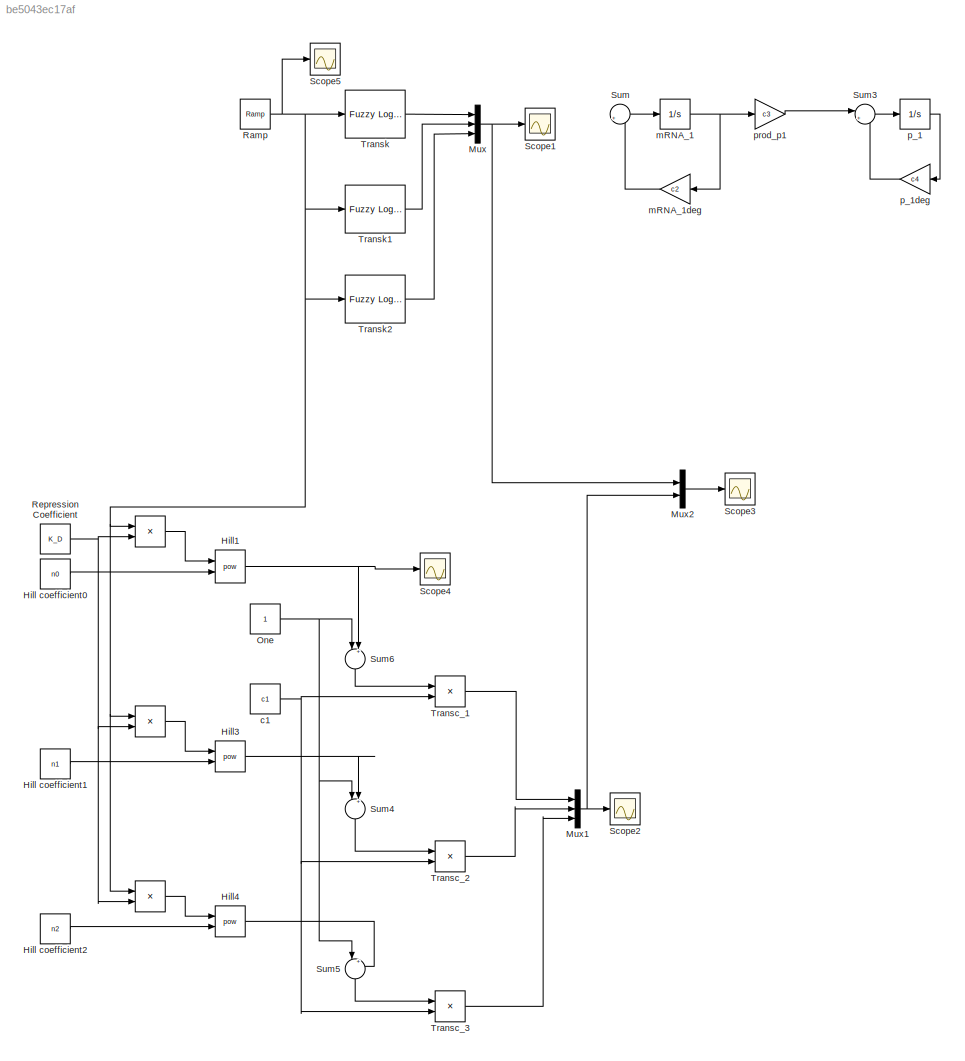
MODEL slx_be5043ec17af
KIND model
CONFIG AbsTol = auto
CONFIG FixedStep = 0.1
CONFIG MaxStep = auto
CONFIG MinStep = auto
CONFIG RelTol = 1e-3
CONFIG SampleTimeConstraint = Unconstrained
CONFIG Solver = ode4
CONFIG SolverMode = Auto
CONFIG SolverName = ode4
CONFIG StartTime = 0.0
CONFIG StopTime = 100
BLOCK [Product]  
  InputSameDT = off
  Inputs = */
  OutDataTypeStr = Inherit: Inherit via internal rule
  Ports = [2, 1]
  RndMeth = Floor
  SaturateOnIntegerOverflow = off
BLOCK [Constant] Hill coefficient0
  Value = n0
BLOCK [Constant] Hill coefficient1
  Value = n1
BLOCK [Constant] Hill coefficient2
  Value = n2
BLOCK [Math] Hill1
  Operator = pow
  Ports = [2, 1]
BLOCK [Math] Hill3
  Operator = pow
  Ports = [2, 1]
BLOCK [Math] Hill4
  Operator = pow
  Ports = [2, 1]
BLOCK [Mux] Mux
  DisplayOption = bar
  Inputs = 3
  Ports = [3, 1]
BLOCK [Mux] Mux1
  DisplayOption = bar
  Inputs = 3
  Ports = [3, 1]
BLOCK [Mux] Mux2
  DisplayOption = bar
  Inputs = 2
  Ports = [2, 1]
BLOCK [Constant] One
BLOCK [Reference] Ramp  REF=simulink/Sources/Ramp
  Ports = [0, 1]
  SourceBlock = simulink/Sources/Ramp
  SourceType = Ramp
  VectorParams1D = on
  X0 = 0
  slope = 4
  start = 0
BLOCK [Constant] Repression Coefficient
  Value = K_D
BLOCK [Scope] Scope1
  Floating = off
  LimitDataPoints = off
  NumInputPorts = 1
  Ports = [1]
  SampleTime = 0
  SaveName = mRNA_FL
  SaveToWorkspace = on
  TimeRange = 100
  YMax = 1.5
  YMin = 0
BLOCK [Scope] Scope2
  Floating = off
  LimitDataPoints = off
  NumInputPorts = 1
  Ports = [1]
  SampleTime = 0
  SaveName = mRNA_ODE
  SaveToWorkspace = on
  TimeRange = 100
  YMax = 1.5
  YMin = 0
  ZoomMode = xonly
BLOCK [Scope] Scope3
  Floating = off
  LimitDataPoints = off
  NumInputPorts = 1
  Ports = [1]
  SampleTime = 0
  SaveName = mRNAChange2
  TimeRange = 100
  YMax = 1.5
  YMin = 0
  ZoomMode = xonly
BLOCK [Scope] Scope4
  Floating = off
  LimitDataPoints = off
  NumInputPorts = 1
  Ports = [1]
  SampleTime = 0
  SaveName = mRNAChange3
  SaveToWorkspace = on
  TimeRange = 100
  YMax = 1.5
  YMin = 0
  ZoomMode = xonly
BLOCK [Scope] Scope5
  Floating = off
  LimitDataPoints = off
  NumInputPorts = 1
  Ports = [1]
  SampleTime = 0
  SaveName = mRNAChange4
  SaveToWorkspace = on
  TimeRange = 100
  YMax = 1.5
  YMin = 0
  ZoomMode = xonly
BLOCK [Sum] Sum
  Commented = on
  IconShape = round
  InputSameDT = off
  Inputs = |+-
  OutDataTypeStr = Inherit: Inherit via internal rule
  Ports = [2, 1]
  SaturateOnIntegerOverflow = off
BLOCK [Sum] Sum3
  Commented = on
  IconShape = round
  InputSameDT = off
  Inputs = |+-
  OutDataTypeStr = Inherit: Inherit via internal rule
  Ports = [2, 1]
  SaturateOnIntegerOverflow = off
BLOCK [Sum] Sum4
  IconShape = round
  InputSameDT = off
  Inputs = |++
  OutDataTypeStr = Inherit: Inherit via internal rule
  Ports = [2, 1]
  SaturateOnIntegerOverflow = off
BLOCK [Sum] Sum5
  IconShape = round
  InputSameDT = off
  Inputs = |++
  OutDataTypeStr = Inherit: Inherit via internal rule
  Ports = [2, 1]
  SaturateOnIntegerOverflow = off
BLOCK [Sum] Sum6
  IconShape = round
  InputSameDT = off
  Inputs = |++
  OutDataTypeStr = Inherit: Inherit via internal rule
  Ports = [2, 1]
  SaturateOnIntegerOverflow = off
BLOCK [Product] Transc_1
  InputSameDT = off
  Inputs = /*
  OutDataTypeStr = Inherit: Inherit via internal rule
  Ports = [2, 1]
  RndMeth = Floor
  SaturateOnIntegerOverflow = off
BLOCK [Product] Transc_2
  InputSameDT = off
  Inputs = /*
  OutDataTypeStr = Inherit: Inherit via internal rule
  Ports = [2, 1]
  RndMeth = Floor
  SaturateOnIntegerOverflow = off
BLOCK [Product] Transc_3
  InputSameDT = off
  Inputs = /*
  OutDataTypeStr = Inherit: Inherit via internal rule
  Ports = [2, 1]
  RndMeth = Floor
  SaturateOnIntegerOverflow = off
BLOCK [Reference] Transk  REF=fuzblock/Fuzzy Logic   (lib defined in mdl_858b3b3e7478)
Controller
  Ports = [1, 1]
  SourceBlock = fuzblock/Fuzzy Logic \nController
  SourceType = FIS
  fis = Transk0
BLOCK [Reference] Transk1  REF=fuzblock/Fuzzy Logic   (lib defined in mdl_858b3b3e7478)
Controller
  Ports = [1, 1]
  SourceBlock = fuzblock/Fuzzy Logic \nController
  SourceType = FIS
  fis = Transk1
BLOCK [Reference] Transk2  REF=fuzblock/Fuzzy Logic   (lib defined in mdl_858b3b3e7478)
Controller
  Ports = [1, 1]
  SourceBlock = fuzblock/Fuzzy Logic \nController
  SourceType = FIS
  fis = Transk2
BLOCK [Constant] c1
  Value = c1
BLOCK [Integrator] mRNA_1
  Commented = on
  InitialCondition = mRNA_init + 0.5
  LimitOutput = on
  LowerSaturationLimit = 0
  Ports = [1, 1]
BLOCK [Gain] mRNA_1deg
  Commented = on
  Gain = c2
  OutDataTypeStr = Inherit: Inherit via internal rule
  ParamDataTypeStr = Inherit: Inherit via internal rule
  SaturateOnIntegerOverflow = off
BLOCK [Integrator] p_1
  Commented = on
  LimitOutput = on
  LowerSaturationLimit = 0
  Ports = [1, 1]
BLOCK [Gain] p_1deg
  Commented = on
  Gain = c4
  OutDataTypeStr = Inherit: Inherit via internal rule
  ParamDataTypeStr = Inherit: Inherit via internal rule
  SaturateOnIntegerOverflow = off
BLOCK [Gain] prod_p1
  Commented = on
  Gain = c3
  OutDataTypeStr = Inherit: Inherit via internal rule
  ParamDataTypeStr = Inherit: Inherit via internal rule
  SaturateOnIntegerOverflow = off
NET  :1 -> Hill1:1, Hill3:1, Hill4:1
LINE Hill coefficient0:1 -> Hill1:2
LINE Hill coefficient1:1 -> Hill3:2
LINE Hill coefficient2:1 -> Hill4:2
NET Hill1:1 -> Scope4:1, Sum6:2
LINE Hill3:1 -> Sum4:2
LINE Hill4:1 -> Sum5:2
NET Mux1:1 -> Mux2:2, Scope2:1
LINE Mux2:1 -> Scope3:1
NET Mux:1 -> Mux2:1, Scope1:1
NET One:1 -> Sum4:1, Sum5:1, Sum6:1
NET Ramp:1 ->  :1, Scope5:1, Transk1:1, Transk2:1, Transk:1
LINE Repression Coefficient:1 ->  :2
LINE Sum3:1 -> p_1:1
LINE Sum4:1 -> Transc_2:1
LINE Sum5:1 -> Transc_3:1
LINE Sum6:1 -> Transc_1:1
LINE Sum:1 -> mRNA_1:1
LINE Transc_1:1 -> Mux1:1
LINE Transc_2:1 -> Mux1:2
LINE Transc_3:1 -> Mux1:3
LINE Transk1:1 -> Mux:2
LINE Transk2:1 -> Mux:3
LINE Transk:1 -> Mux:1
NET c1:1 -> Transc_1:2, Transc_2:2, Transc_3:2
NET mRNA_1:1 -> mRNA_1deg:1, prod_p1:1
LINE mRNA_1deg:1 -> Sum:2
LINE p_1:1 -> p_1deg:1
LINE p_1deg:1 -> Sum3:2
LINE prod_p1:1 -> Sum3:1
note: NET lines group one-source signal fan-out (src -> all destinations, sorted); 1:1 wires keep LINE
